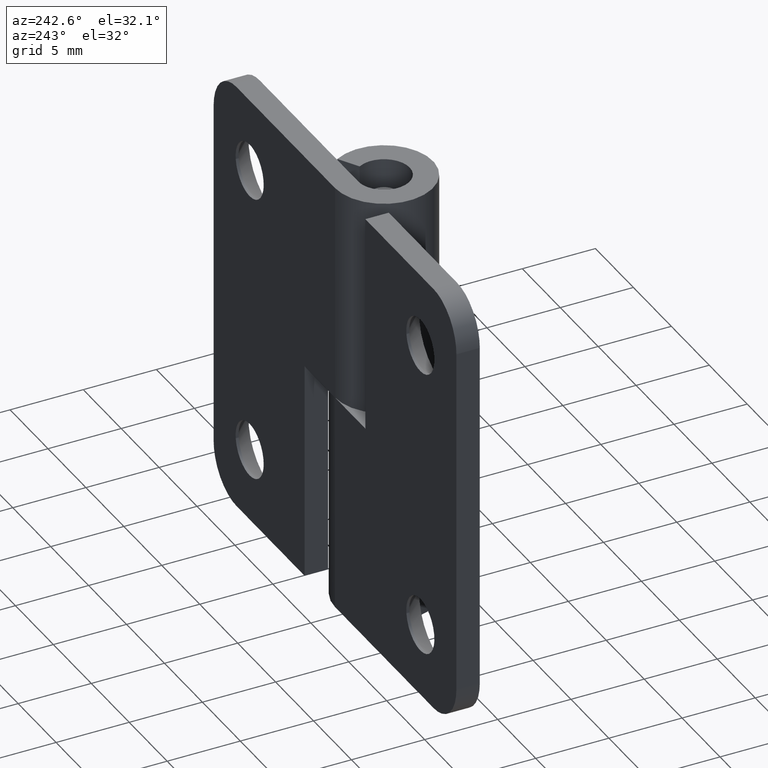
[diagram: clean part render]
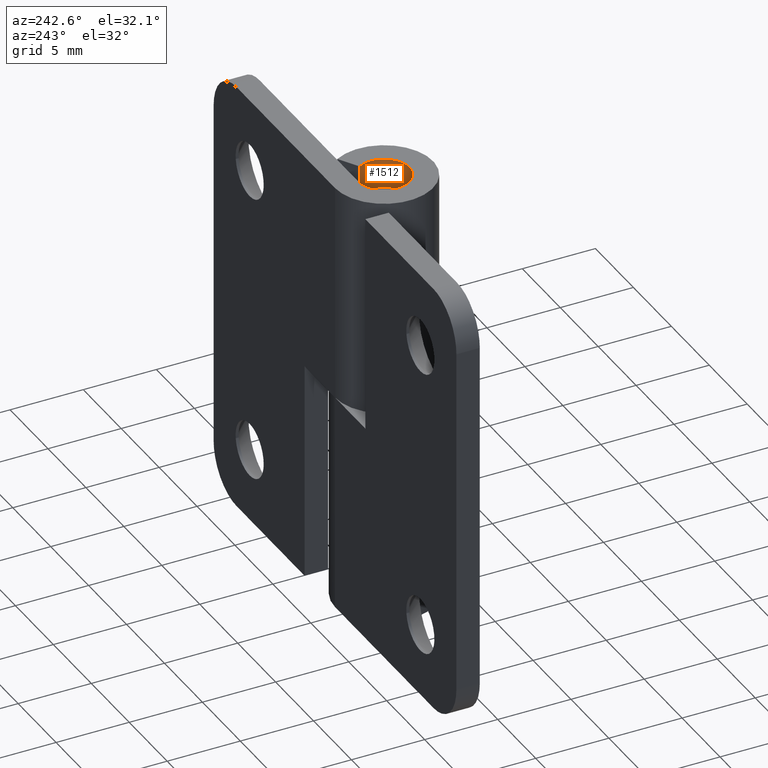
[diagram: same view with one face highlighted and labeled with its STEP entity id]
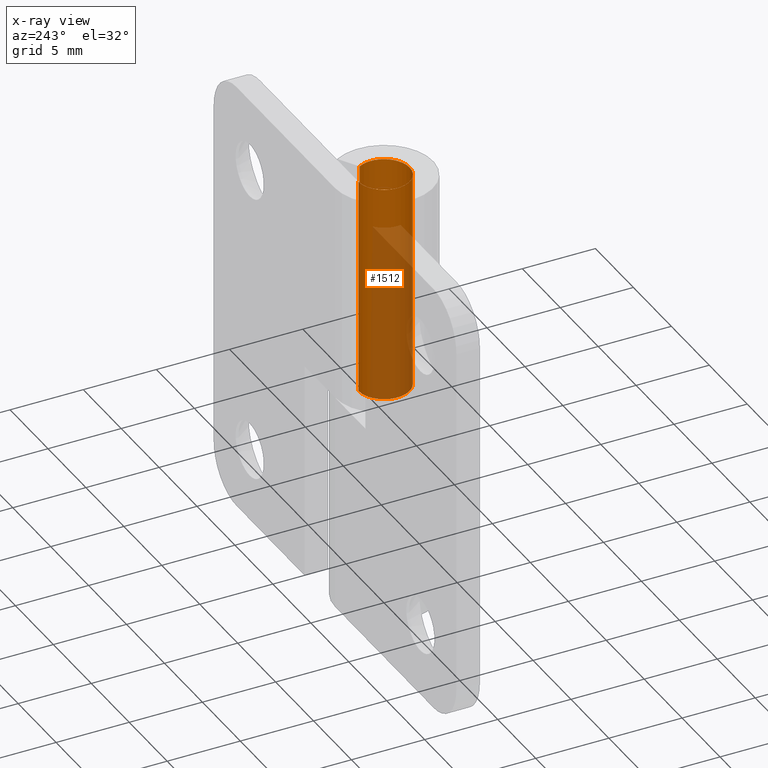
[diagram: x-ray of the same camera — body ghosted, the highlighted face saturated]
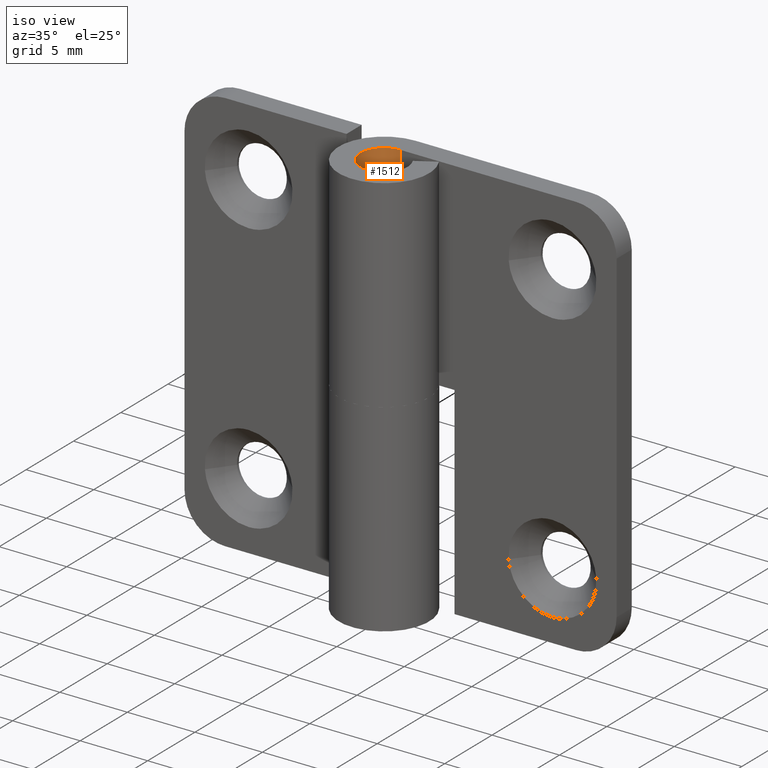
[diagram: same view with one face highlighted and labeled with its STEP entity id]
A machine part, auxiliary view. The second image highlights one B-rep face of the part: STEP entity #1512.
The next image is the same camera in x-ray: the body ghosted, the highlighted face saturated — about 55% of this face is hidden behind the body in this view.
A second angle (iso view) of the same face is appended — the face is thin or edge-on in the first view.
In plain terms, the highlighted face is a freeform B-spline surface patch.
Its self-contained STEP definition (entity closure, byte-faithful):
#1142=CARTESIAN_POINT('',(4.440892E-016,1.750000000000000,15.0));
#1143=VERTEX_POINT('',#1142);
#1149=CARTESIAN_POINT('',(1.507929032343695,0.888059701492537,15.0));
#1150=VERTEX_POINT('',#1149);
#1151=CARTESIAN_POINT('',(0.0,1.750000000000000,15.0));
#1152=CARTESIAN_POINT('',(-1.345827124005091,1.749999999999999,14.999999999999995));
#1153=CARTESIAN_POINT('',(-1.691344455303239,0.449281574867019,15.0));
#1154=CARTESIAN_POINT('',(-2.036861786601387,-0.851436850265962,14.999999999999995));
#1155=CARTESIAN_POINT('',(-0.868445600595703,-1.519309790268584,15.0));
#1156=CARTESIAN_POINT('',(0.299970585409981,-2.187182730271207,14.999999999999995));
#1157=CARTESIAN_POINT('',(1.245428332878129,-1.229393455190162,15.0));
#1158=CARTESIAN_POINT('',(2.190886080346277,-0.271604180109118,14.999999999999995));
#1159=CARTESIAN_POINT('',(1.507929032343694,0.888059701492536,15.0));
#1167=(BOUNDED_CURVE()B_SPLINE_CURVE(2,(#1151,#1152,#1153,#1154,#1155,#1156,#1157,#1158,#1159),.UNSPECIFIED.,.F.,.U.)B_SPLINE_CURVE_WITH_KNOTS((3,2,2,2,3),(0.0,0.250000000000000,0.500000000000000,0.750000000000000,1.0),.UNSPECIFIED.)CURVE()GEOMETRIC_REPRESENTATION_ITEM()RATIONAL_B_SPLINE_CURVE((1.0,0.792695505378780,1.0,0.792695505378780,1.0,0.792695505378780,1.0,0.792695505378780,1.0))REPRESENTATION_ITEM(''));
#1168=EDGE_CURVE('',#1143,#1150,#1167,.T.);
#1341=CARTESIAN_POINT('',(4.440892E-016,1.750000000000000,30.000008000000001));
#1342=VERTEX_POINT('',#1341);
#1377=CARTESIAN_POINT('',(1.507929032343695,0.888059701492537,30.000008000000001));
#1378=VERTEX_POINT('',#1377);
#1384=CARTESIAN_POINT('',(1.507929032343693,0.888059701492536,30.000008000000001));
#1385=CARTESIAN_POINT('',(2.190886080346277,-0.271604180109117,30.000007999999994));
#1386=CARTESIAN_POINT('',(1.245428332878129,-1.229393455190162,30.000008000000001));
#1387=CARTESIAN_POINT('',(0.299970585409983,-2.187182730271207,30.000007999999994));
#1388=CARTESIAN_POINT('',(-0.868445600595702,-1.519309790268584,30.000008000000001));
#1389=CARTESIAN_POINT('',(-2.036861786601388,-0.851436850265962,30.000007999999994));
#1390=CARTESIAN_POINT('',(-1.691344455303239,0.449281574867020,30.000008000000001));
#1391=CARTESIAN_POINT('',(-1.345827124005091,1.750000000000000,30.000007999999994));
#1392=CARTESIAN_POINT('',(0.0,1.750000000000000,30.000008000000001));
#1400=(BOUNDED_CURVE()B_SPLINE_CURVE(2,(#1384,#1385,#1386,#1387,#1388,#1389,#1390,#1391,#1392),.UNSPECIFIED.,.F.,.U.)B_SPLINE_CURVE_WITH_KNOTS((3,2,2,2,3),(0.0,0.250000000000000,0.500000000000000,0.750000000000000,1.0),.UNSPECIFIED.)CURVE()GEOMETRIC_REPRESENTATION_ITEM()RATIONAL_B_SPLINE_CURVE((1.0,0.792695505378780,1.0,0.792695505378780,1.0,0.792695505378780,1.0,0.792695505378780,1.0))REPRESENTATION_ITEM(''));
#1401=EDGE_CURVE('',#1378,#1342,#1400,.T.);
#1432=CARTESIAN_POINT('',(1.507929032343695,0.888059701492537,15.0));
#1433=CARTESIAN_POINT('',(1.507929032343695,0.888059701492537,30.000008000000001));
#1434=QUASI_UNIFORM_CURVE('',1,(#1432,#1433),.UNSPECIFIED.,.F.,.U.);
#1435=EDGE_CURVE('',#1150,#1378,#1434,.T.);
#1480=CARTESIAN_POINT('',(1.475935030172549,0.940274314606941,14.624999799999999));
#1481=CARTESIAN_POINT('',(1.475935030172549,0.940274314606941,30.384383205000010));
#1482=CARTESIAN_POINT('',(2.644008191926787,-0.893233280416713,14.624999799999998));
#1483=CARTESIAN_POINT('',(2.644008191926787,-0.893233280416713,30.384383205000010));
#1484=CARTESIAN_POINT('',(0.603316258099439,-1.642714062980191,14.624999799999999));
#1485=CARTESIAN_POINT('',(0.603316258099439,-1.642714062980191,30.384383205000010));
#1486=CARTESIAN_POINT('',(-1.437375675727910,-2.392194845543668,14.624999799999998));
#1487=CARTESIAN_POINT('',(-1.437375675727910,-2.392194845543668,30.384383205000010));
#1488=CARTESIAN_POINT('',(-1.733670254207947,-0.238510900536114,14.624999799999999));
#1489=CARTESIAN_POINT('',(-1.733670254207947,-0.238510900536114,30.384383205000010));
#1490=CARTESIAN_POINT('',(-2.029964832687985,1.915173044471441,14.624999799999998));
#1491=CARTESIAN_POINT('',(-2.029964832687985,1.915173044471441,30.384383205000010));
#1492=CARTESIAN_POINT('',(0.137303417523730,1.744605334032973,14.624999799999999));
#1493=CARTESIAN_POINT('',(0.137303417523730,1.744605334032973,30.384383205000010));
#1501=(BOUNDED_SURFACE()B_SPLINE_SURFACE(1,2,((#1480,#1482,#1484,#1486,#1488,#1490,#1492),(#1481,#1483,#1485,#1487,#1489,#1491,#1493)),.UNSPECIFIED.,.F.,.F.,.U.)B_SPLINE_SURFACE_WITH_KNOTS((2,2),(3,2,2,3),(0.0,15.759383405000010),(0.0,3.351334755823972,6.702669511647944,10.054004267471919),.UNSPECIFIED.)GEOMETRIC_REPRESENTATION_ITEM()RATIONAL_B_SPLINE_SURFACE(((1.0,0.627057105746662,1.0,0.627057105746662,1.0,0.627057105746662,1.0),(1.0,0.627057105746662,1.0,0.627057105746662,1.0,0.627057105746662,1.0)))REPRESENTATION_ITEM('')SURFACE());
#1502=ORIENTED_EDGE('',*,*,#1168,.F.);
#1503=CARTESIAN_POINT('',(4.440892E-016,1.750000000000000,15.0));
#1504=CARTESIAN_POINT('',(4.440892E-016,1.750000000000000,30.000008000000001));
#1505=QUASI_UNIFORM_CURVE('',1,(#1503,#1504),.UNSPECIFIED.,.F.,.U.);
#1506=EDGE_CURVE('',#1143,#1342,#1505,.T.);
#1507=ORIENTED_EDGE('',*,*,#1506,.T.);
#1508=ORIENTED_EDGE('',*,*,#1401,.F.);
#1509=ORIENTED_EDGE('',*,*,#1435,.F.);
#1510=EDGE_LOOP('',(#1502,#1507,#1508,#1509));
#1511=FACE_OUTER_BOUND('',#1510,.T.);
#1512=ADVANCED_FACE('',(#1511),#1501,.F.);